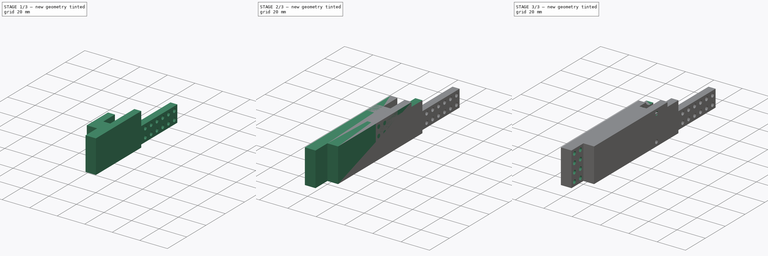
[diagram: build sequence overview — one tinted view per stage of 3, left to right]
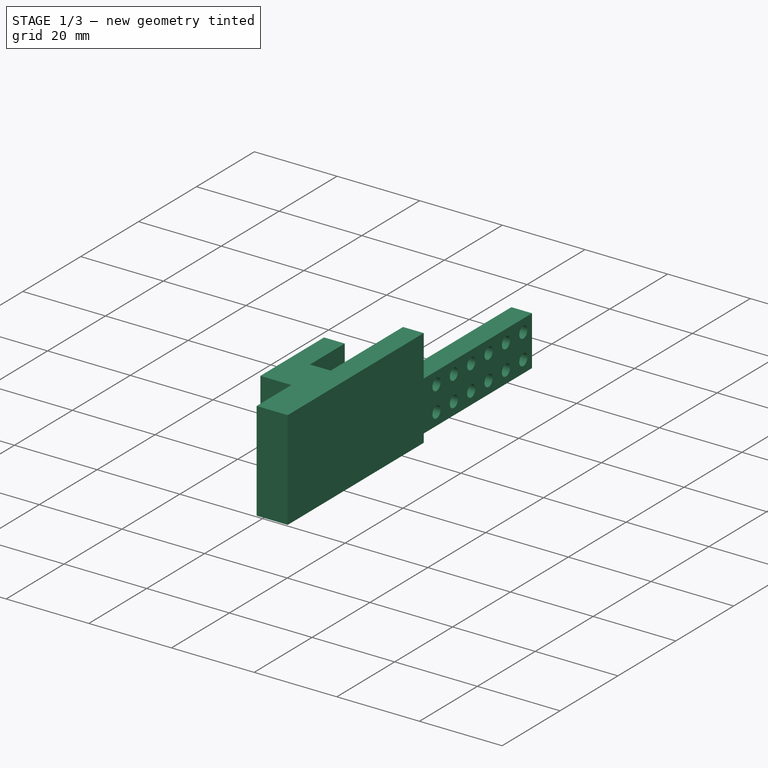
[diagram: stage 1 of 3 — iso view after this stage's code; geometry added in this stage tinted green]
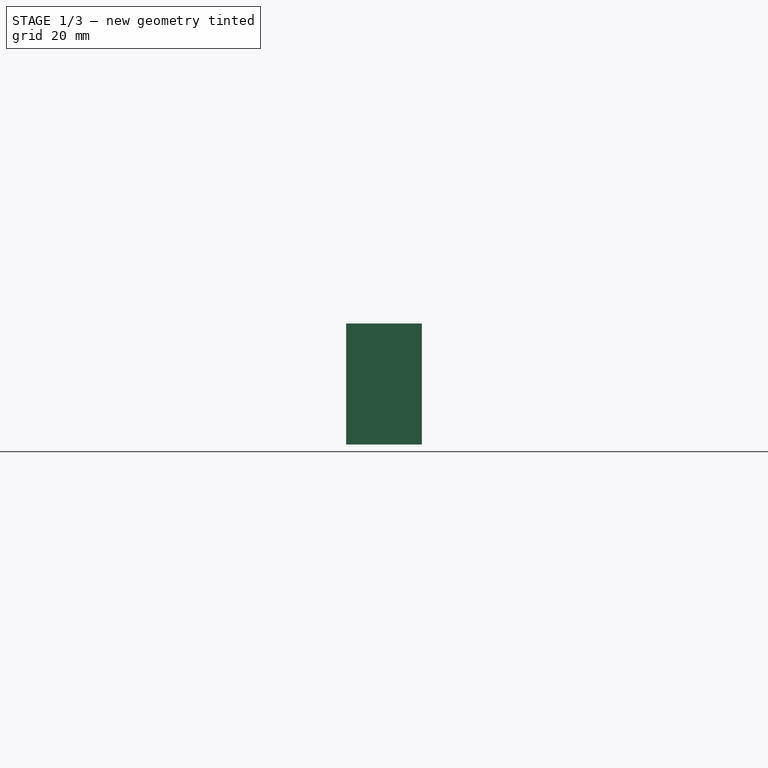
[diagram: stage 1 of 3 — front view after this stage's code; geometry added in this stage tinted green]
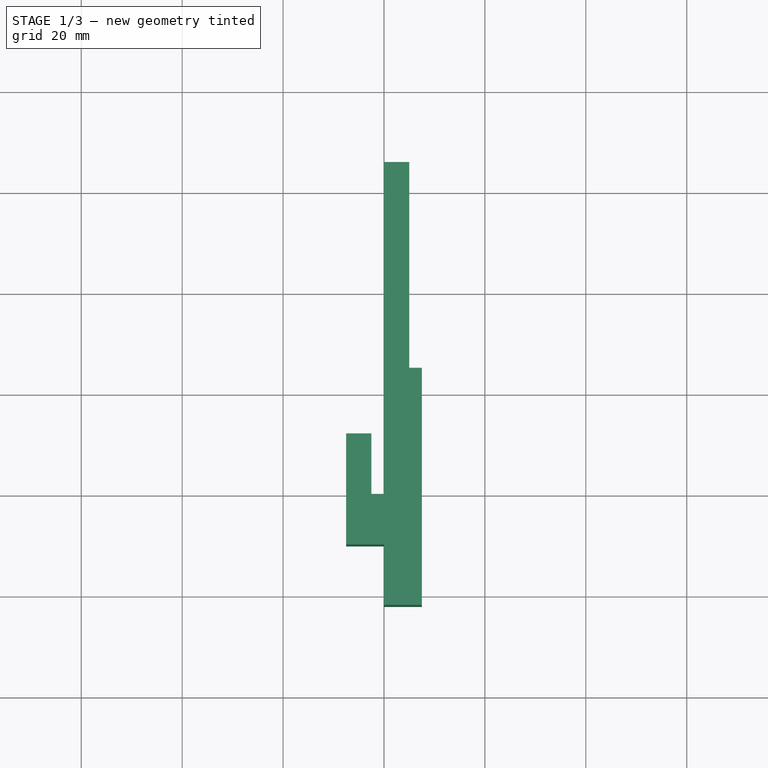
[diagram: stage 1 of 3 — top view after this stage's code; geometry added in this stage tinted green]
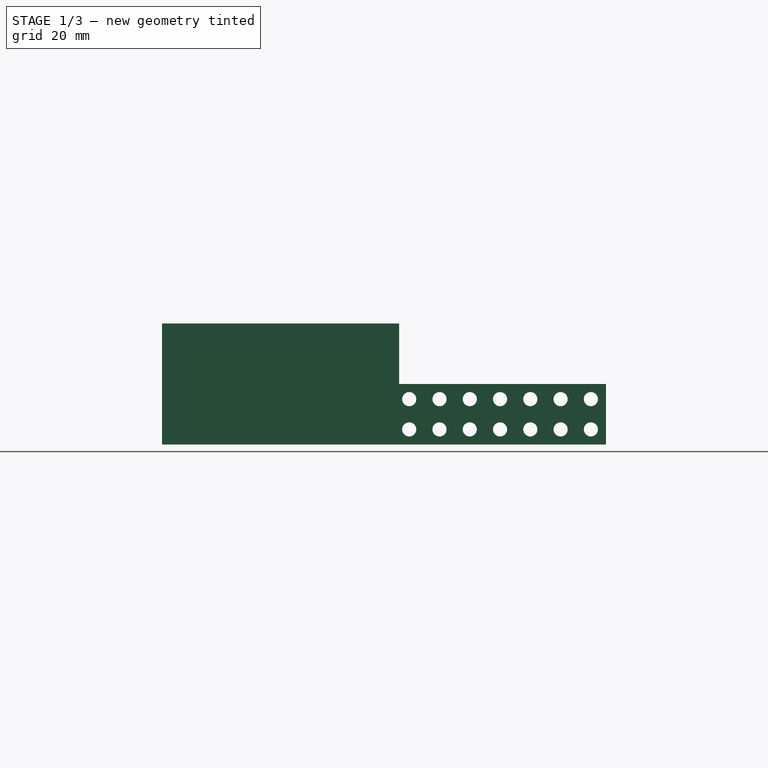
[diagram: stage 1 of 3 — right view after this stage's code; geometry added in this stage tinted green]
FCSTD DOCUMENT  (FreeCAD 0.20R29177 +426 (Git))
Label: FrontRearConn
License: All rights reserved
LicenseURL: http://en.wikipedia.org/wiki/All_rights_reserved
objects: Sketcher::SketchObject×6, PartDesign::Pad×3, PartDesign::Pocket×3, PartDesign::Body×3, Spreadsheet::Sheet×1
note: 21 computed .brp shape members not serialized (recipe doc carries the construction recipe); baked Part::Feature solids carry a one-line shape summary decoded from their .brp

FEATURE [PartDesign::Body] Body  label="BodyFrontConnExtender"
  Group = -> [Sketch,Pad,Sketch001,Pocket,Sketch002,Pocket001]
  Origin = -> Origin
  Tip = -> Pocket001
FEATURE [Sketcher::SketchObject] Sketch003
  FullyConstrained = true
  MapMode = 5
  Support = -> [XY_Plane001]
  expr: Constraints[12] = Spreadsheet.rearThickness
  expr: Constraints[13] = Spreadsheet.rearThickness
  expr: Constraints[26] = Spreadsheet.connPad1
  expr: Constraints[27] = Spreadsheet.rearLenBelow0
  expr: Constraints[2] = Spreadsheet.frontSep
  expr: Constraints[7] = Spreadsheet.rearConnUperClamDepth
  expr: Constraints[8] = Spreadsheet.rearConnUnderClamDepth
  sketch-geometry (10):
    g0: LineSegment StartX=-2.505 StartY=0 StartZ=0 EndX=2.505 EndY=0 EndZ=0
    g1: LineSegment StartX=2.505 StartY=0 StartZ=0 EndX=2.505 EndY=25 EndZ=0
    g2: LineSegment StartX=-2.505 StartY=0 StartZ=0 EndX=-2.505 EndY=12 EndZ=0
    g3: LineSegment StartX=2.505 StartY=25 StartZ=0 EndX=7.505 EndY=25 EndZ=0
    g4: LineSegment StartX=-2.505 StartY=12 StartZ=0 EndX=-7.505 EndY=12 EndZ=0
    g5: LineSegment StartX=7.505 StartY=25 StartZ=0 EndX=7.505 EndY=-22 EndZ=0
    g6: LineSegment StartX=-7.505 StartY=12 StartZ=0 EndX=-7.505 EndY=-10 EndZ=0
    g7: LineSegment StartX=-7.505 StartY=-10 StartZ=0 EndX=0 EndY=-10 EndZ=0
    g8: LineSegment StartX=0 StartY=-10 StartZ=0 EndX=0 EndY=-22 EndZ=0
    g9: LineSegment StartX=0 StartY=-22 StartZ=0 EndX=7.505 EndY=-22 EndZ=0
  constraints (29):
    c: PointOnObject(g0,g-1)
    c: Symmetric(g0,g0,g-1)
    c: DistanceX(g0,g0) = 5.01
    c: Coincident(g1,g0)
    c: Vertical(g1)
    c: Coincident(g2,g0)
    c: Vertical(g2)
    c: DistanceY(g1,g1) = 25
    c: DistanceY(g2,g2) = 12
    c: Coincident(g3,g1)
    c: Horizontal(g3)
    c: Coincident(g4,g2)
    c: DistanceX(g3,g3) = 5
    c: DistanceX(g4,g4) = 5
    c: Coincident(g5,g3)
    c: Vertical(g5)
    c: Coincident(g6,g4)
    c: Vertical(g6)
    c: Coincident(g7,g6)
    c: PointOnObject(g7,g-2)
    c: Horizontal(g7)
    c: Coincident(g8,g7)
    c: Coincident(g9,g8)
    c: Horizontal(g9)
    c: Coincident(g5,g9)
    c: Vertical(g8)
    c: DistanceY(g8,g8) = 12
    c: DistanceY(g7,g-1) = 10
    c: Horizontal(g4)
FEATURE [PartDesign::Pad] Pad001
  Direction = (0,0,1)
  Length = 24
  Length2 = 10
  Profile = -> Sketch003
  ReferenceAxis = -> Sketch003 [N_Axis]
  Type = 0
  expr: Length = Spreadsheet.connPad
FEATURE [PartDesign::Body] Body001  label="Body001RearConnExtender"
  Group = -> [Sketch003,Pad001,Sketch004,Pocket002]
  Origin = -> Origin001
  Tip = -> Pocket002
FEATURE [Sketcher::SketchObject] Sketch005
  FullyConstrained = false
  MapMode = 5
  Placement = pos=(0,0,0) rot=(0.57735,0.57735,0.57735;2.0944rad)
  Support = -> [YZ_Plane002]
  expr: Constraints[10] = Spreadsheet.middleConnLen
  expr: Constraints[12] = Spreadsheet.screwToSide
  expr: Constraints[17] = Spreadsheet.screwToSide
  expr: Constraints[21] = Spreadsheet.screwTightR
  expr: Constraints[23] = Spreadsheet.screwSep
  expr: Constraints[24] = Spreadsheet.screwTightR
  expr: Constraints[26] = Spreadsheet.screwSep
  expr: Constraints[27] = Spreadsheet.screwTightR
  expr: Constraints[29] = Spreadsheet.screwSep
  expr: Constraints[30] = Spreadsheet.screwTightR
  expr: Constraints[32] = Spreadsheet.screwSep
  expr: Constraints[33] = Spreadsheet.screwTightR
  expr: Constraints[35] = Spreadsheet.screwSep
  expr: Constraints[36] = Spreadsheet.screwTightR
  expr: Constraints[38] = Spreadsheet.screwSep
  expr: Constraints[39] = Spreadsheet.screwTightR
  expr: Constraints[41] = Spreadsheet.screwSep
  expr: Constraints[42] = Spreadsheet.screwTightR
  expr: Constraints[44] = Spreadsheet.screwSep
  expr: Constraints[45] = Spreadsheet.screwTightR
  expr: Constraints[47] = Spreadsheet.screwSep
  expr: Constraints[48] = Spreadsheet.screwTightR
  expr: Constraints[50] = Spreadsheet.screwSep
  expr: Constraints[51] = Spreadsheet.screwTightR
  expr: Constraints[53] = Spreadsheet.screwSep
  expr: Constraints[55] = Spreadsheet.screwTightR
  expr: Constraints[57] = Spreadsheet.screwSep
  expr: Constraints[58] = Spreadsheet.screwTightR
  expr: Constraints[60] = Spreadsheet.screwSep
  expr: Constraints[61] = Spreadsheet.screwTightR
  expr: Constraints[63] = Spreadsheet.screwSep
  expr: Constraints[64] = Spreadsheet.screwTightR
  expr: Constraints[66] = Spreadsheet.screwSep
  expr: Constraints[67] = Spreadsheet.screwTightR
  expr: Constraints[69] = Spreadsheet.screwSep
  expr: Constraints[70] = Spreadsheet.screwTightR
  expr: Constraints[72] = Spreadsheet.screwSep
  expr: Constraints[73] = Spreadsheet.screwTightR
  expr: Constraints[75] = Spreadsheet.screwSep
  expr: Constraints[76] = Spreadsheet.screwTightR
  expr: Constraints[78] = Spreadsheet.screwSep
  expr: Constraints[79] = Spreadsheet.screwTightR
  expr: Constraints[81] = Spreadsheet.screwSep
  expr: Constraints[82] = Spreadsheet.screwTightR
  expr: Constraints[84] = Spreadsheet.screwSep
  expr: Constraints[85] = Spreadsheet.screwTightR
  expr: Constraints[9] = Spreadsheet.rearConnUnderClamDepth
  sketch-geometry (30):
    g0: LineSegment StartX=0 StartY=0 StartZ=0 EndX=66 EndY=0 EndZ=0
    g1: LineSegment StartX=66 StartY=0 StartZ=0 EndX=66 EndY=12 EndZ=0
    g2: LineSegment StartX=66 StartY=12 StartZ=0 EndX=0 EndY=12 EndZ=0
    g3: LineSegment StartX=0 StartY=12 StartZ=0 EndX=0 EndY=0 EndZ=0
    g4: LineSegment StartX=3 StartY=3 StartZ=0 EndX=64.0321 EndY=3 EndZ=0
    g5: LineSegment StartX=3 StartY=3 StartZ=0 EndX=3 EndY=9 EndZ=0
    g6: LineSegment StartX=64.0321 StartY=3 StartZ=0 EndX=64.0321 EndY=9 EndZ=0
    g7: LineSegment StartX=3 StartY=9 StartZ=0 EndX=64.0321 EndY=9 EndZ=0
    g8: Circle CenterX=3 CenterY=9 CenterZ=0 NormalX=0 NormalY=0 NormalZ=1 AngleXU=0 Radius=1.4
    g9: Circle CenterX=9 CenterY=9 CenterZ=0 NormalX=0 NormalY=0 NormalZ=1 AngleXU=0 Radius=1.4
    g10: Circle CenterX=15 CenterY=9 CenterZ=0 NormalX=0 NormalY=0 NormalZ=1 AngleXU=0 Radius=1.4
    g11: Circle CenterX=21 CenterY=9 CenterZ=0 NormalX=0 NormalY=0 NormalZ=1 AngleXU=0 Radius=1.4
    g12: Circle CenterX=27 CenterY=9 CenterZ=0 NormalX=0 NormalY=0 NormalZ=1 AngleXU=0 Radius=1.4
    g13: Circle CenterX=33 CenterY=9 CenterZ=0 NormalX=0 NormalY=0 NormalZ=1 AngleXU=0 Radius=1.4
    g14: Circle CenterX=39 CenterY=9 CenterZ=0 NormalX=0 NormalY=0 NormalZ=1 AngleXU=0 Radius=1.4
    g15: Circle CenterX=45 CenterY=9 CenterZ=0 NormalX=0 NormalY=0 NormalZ=1 AngleXU=0 Radius=1.4
    g16: Circle CenterX=51 CenterY=9 CenterZ=0 NormalX=0 NormalY=0 NormalZ=1 AngleXU=0 Radius=1.4
    g17: Circle CenterX=57 CenterY=9 CenterZ=0 NormalX=0 NormalY=0 NormalZ=1 AngleXU=0 Radius=1.4
    g18: Circle CenterX=63 CenterY=9 CenterZ=0 NormalX=0 NormalY=0 NormalZ=1 AngleXU=0 Radius=1.4
    g19: Circle CenterX=3 CenterY=3 CenterZ=0 NormalX=0 NormalY=0 NormalZ=1 AngleXU=0 Radius=1.4
    g20: Circle CenterX=9 CenterY=3 CenterZ=0 NormalX=0 NormalY=0 NormalZ=1 AngleXU=0 Radius=1.4
    g21: Circle CenterX=15 CenterY=3 CenterZ=0 NormalX=0 NormalY=0 NormalZ=1 AngleXU=0 Radius=1.4
    g22: Circle CenterX=21 CenterY=3 CenterZ=0 NormalX=0 NormalY=0 NormalZ=1 AngleXU=0 Radius=1.4
    g23: Circle CenterX=27 CenterY=3 CenterZ=0 NormalX=0 NormalY=0 NormalZ=1 AngleXU=0 Radius=1.4
    g24: Circle CenterX=33 CenterY=3 CenterZ=0 NormalX=0 NormalY=0 NormalZ=1 AngleXU=0 Radius=1.4
    g25: Circle CenterX=39 CenterY=3 CenterZ=0 NormalX=0 NormalY=0 NormalZ=1 AngleXU=0 Radius=1.4
    g26: Circle CenterX=45 CenterY=3 CenterZ=0 NormalX=0 NormalY=0 NormalZ=1 AngleXU=0 Radius=1.4
    g27: Circle CenterX=51 CenterY=3 CenterZ=0 NormalX=0 NormalY=0 NormalZ=1 AngleXU=0 Radius=1.4
    g28: Circle CenterX=57 CenterY=3 CenterZ=0 NormalX=0 NormalY=0 NormalZ=1 AngleXU=0 Radius=1.4
    g29: Circle CenterX=63 CenterY=3 CenterZ=0 NormalX=0 NormalY=0 NormalZ=1 AngleXU=0 Radius=1.4
  constraints (86):
    c: Coincident(g0,g1)
    c: Coincident(g1,g2)
    c: Coincident(g2,g3)
    c: Coincident(g3,g0)
    c: Horizontal(g0)
    c: Horizontal(g2)
    c: Vertical(g1)
    c: Vertical(g3)
    c: Coincident(g0,g-1)
    c: DistanceY(g3,g3) = 12
    c: DistanceX(g2,g2) = 66
    c: Horizontal(g4)
    c: DistanceX(g0,g4) = 3
    c: Coincident(g5,g4)
    c: Vertical(g5)
    c: Coincident(g6,g4)
    c: Vertical(g6)
    c: DistanceY(g0,g4) = 3
    c: Coincident(g7,g6)
    c: Horizontal(g7)
    c: Coincident(g8,g7)
    c: Radius(g8) = 1.4
    c: PointOnObject(g9,g7)
    c: DistanceX(g8,g9) = 6
    c: Radius(g9) = 1.4
    c: PointOnObject(g10,g7)
    c: DistanceX(g9,g10) = 6
    c: Radius(g10) = 1.4
    c: PointOnObject(g11,g7)
    c: DistanceX(g10,g11) = 6
    c: Radius(g11) = 1.4
    c: PointOnObject(g12,g7)
    c: DistanceX(g11,g12) = 6
    c: Radius(g12) = 1.4
    c: PointOnObject(g13,g7)
    c: DistanceX(g12,g13) = 6
    c: Radius(g13) = 1.4
    c: PointOnObject(g14,g7)
    c: DistanceX(g13,g14) = 6
    c: Radius(g14) = 1.4
    c: PointOnObject(g15,g7)
    c: DistanceX(g14,g15) = 6
    c: Radius(g15) = 1.4
    c: PointOnObject(g16,g7)
    c: DistanceX(g15,g16) = 6
    c: Radius(g16) = 1.4
    c: PointOnObject(g17,g7)
    c: DistanceX(g16,g17) = 6
    c: Radius(g17) = 1.4
    c: PointOnObject(g18,g7)
    c: DistanceX(g17,g18) = 6
    c: Radius(g18) = 1.4
    c: Coincident(g8,g5)
    c: DistanceY(g5,g5) = 6
    c: Coincident(g19,g4)
    c: Radius(g19) = 1.4
    c: PointOnObject(g20,g4)
    c: DistanceX(g19,g20) = 6
    c: Radius(g20) = 1.4
    c: PointOnObject(g21,g4)
    c: DistanceX(g20,g21) = 6
    c: Radius(g21) = 1.4
    c: PointOnObject(g22,g4)
    c: DistanceX(g21,g22) = 6
    c: Radius(g22) = 1.4
    c: PointOnObject(g23,g4)
    c: DistanceX(g22,g23) = 6
    c: Radius(g23) = 1.4
    c: PointOnObject(g24,g4)
    c: DistanceX(g23,g24) = 6
    c: Radius(g24) = 1.4
    c: PointOnObject(g25,g4)
    c: DistanceX(g24,g25) = 6
    c: Radius(g25) = 1.4
    c: PointOnObject(g26,g4)
    c: DistanceX(g25,g26) = 6
    c: Radius(g26) = 1.4
    c: PointOnObject(g27,g4)
    c: DistanceX(g26,g27) = 6
    c: Radius(g27) = 1.4
    c: PointOnObject(g28,g4)
    c: DistanceX(g27,g28) = 6
    c: Radius(g28) = 1.4
    c: PointOnObject(g29,g4)
    c: DistanceX(g28,g29) = 6
    c: Radius(g29) = 1.4
FEATURE [PartDesign::Pad] Pad002
  Direction = (1,-2e-16,3e-16)
  Length = 5
  Length2 = 10
  Placement = pos=(0,0,0) rot=(0.57735,0.57735,0.57735;2.0944rad)
  Profile = -> Sketch005
  ReferenceAxis = -> Sketch005 [N_Axis]
  Type = 0
  expr: Length = Spreadsheet.halfBeamWidth
FEATURE [PartDesign::Body] Body002  label="Body002MiddleConn"
  Group = -> [Sketch005,Pad002]
  Origin = -> Origin002
  Tip = -> Pad002
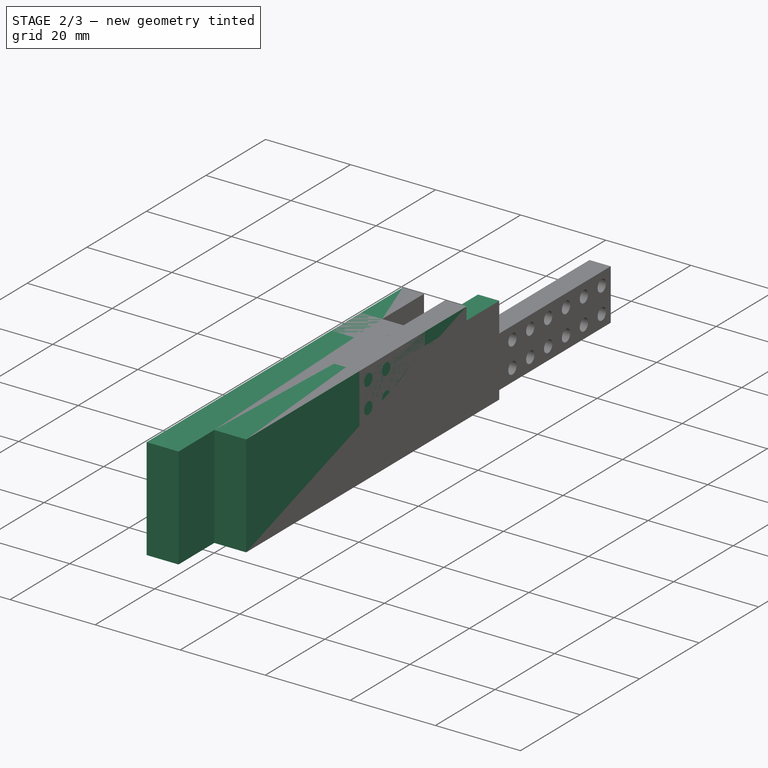
[diagram: stage 2 of 3 — iso view after this stage's code; geometry added in this stage tinted green]
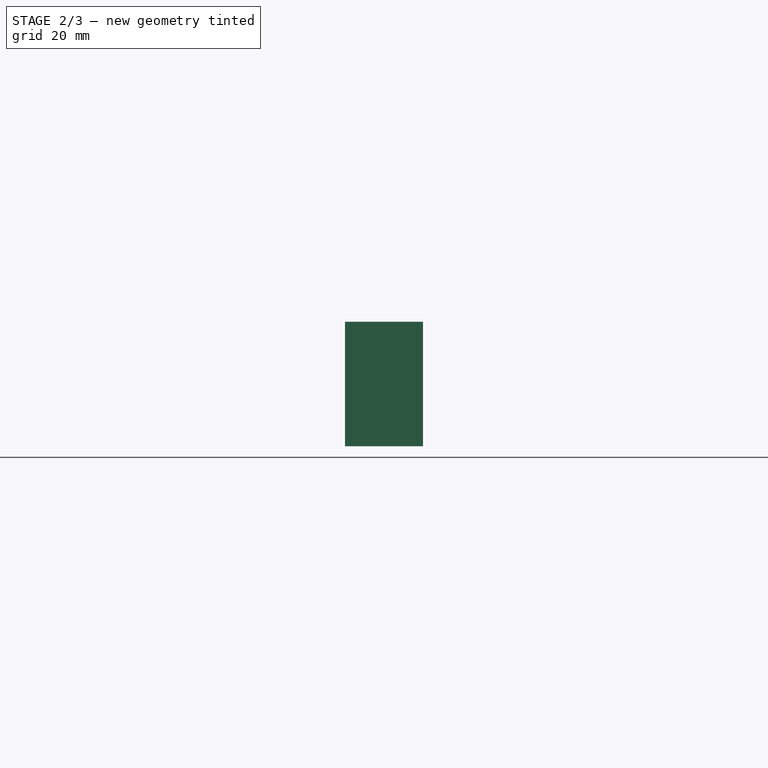
[diagram: stage 2 of 3 — front view after this stage's code; geometry added in this stage tinted green]
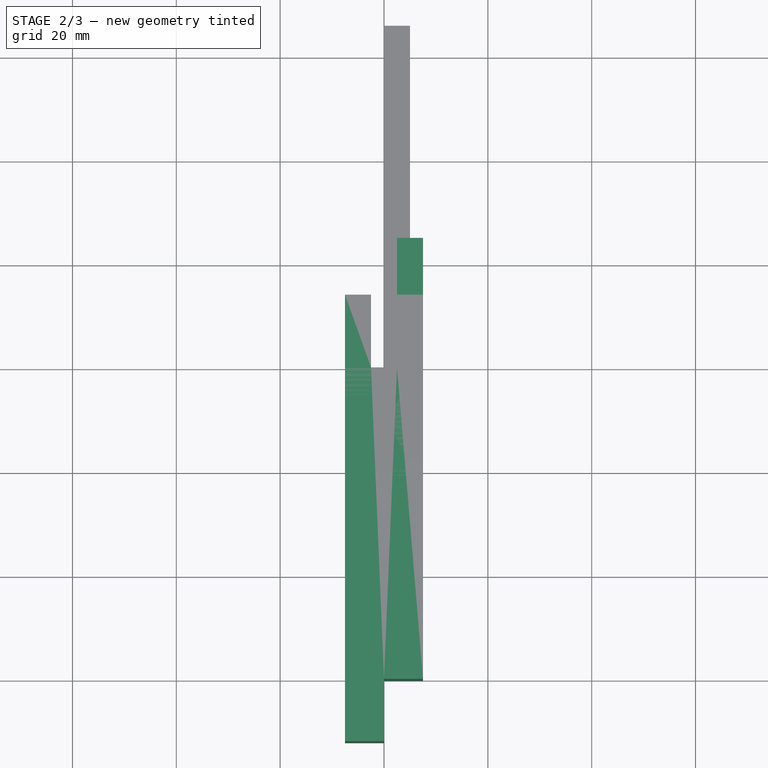
[diagram: stage 2 of 3 — top view after this stage's code; geometry added in this stage tinted green]
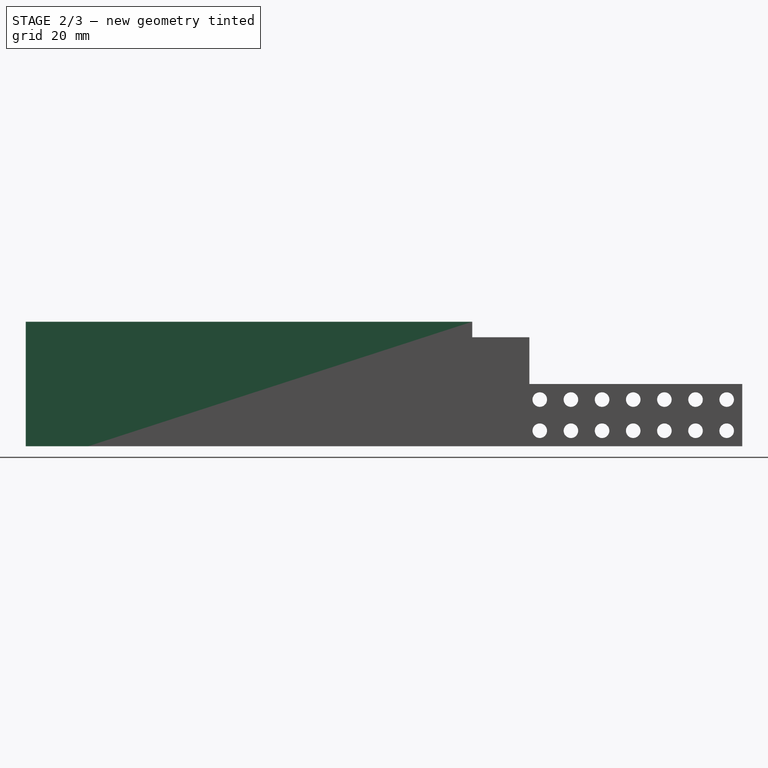
[diagram: stage 2 of 3 — right view after this stage's code; geometry added in this stage tinted green]
FEATURE [Spreadsheet::Sheet] Spreadsheet
  cells = A2=screwTightR; B2(screwTightR)=1.4; A3=screwSep; B3(screwSep)=6; A4=screwToSide; B4(screwToSide)==B3 / 2; A5=connWidth; B5(connWidth)=5; C5=need Change; A6=connPad; B6(connPad)==B3 * 3 + B4 * 2; A7=frontSep; B7(frontSep)==5 + B11; A8=frontClamDepth; B8(frontClamDepth)=14; A9=frontConnLength; B9(frontConnLength)==B8 + B5 + 50; C9=need Change; A10=deg45; B10(deg45)=45; A11=fitGap; B11(fitGap)=0.01; A12=connPad1; B12(connPad1)==B4 * 2 + B3; A13=connFromFrontLenAfter0; B13(connFromFrontLenAfter0)==B9 + B5 + B12 - B8; C13=frontConnLength + connWidth + connPad1 - frontClamDepth; A14=toCenterHousingCorner; B14(toCenterHousingCorner)=7.9; C14=mneasured from centerHousing in frontalConnectors; A15=centerHousingCornerR; B15(centerHousingCornerR)=4.9; C15=4.9, but use 5; A16=centerHousingCornerROuter; B16(centerHousingCornerROuter)==B15 + 0.01; A20=rearConnUperClamDepth; B20(rearConnUperClamDepth)=25; A21=rearConnUnderClamDepth; B21(rearConnUnderClamDepth)==B4 * 2 + B3; A22=rearThickness; B22(rearThickness)=5; C22=need change; A23=rearLenBelow0; B23(rearLenBelow0)=10; C23=needChange; A24=rearOtherUnitThickness; B24(rearOtherUnitThickness)=22; A26=middleConnNumScrews; B26(middleConnNumScrews)=10; A27=halfBeamWidth; B27(halfBeamWidth)==B7 - 0.01; A28=middleConnLen; B28(middleConnLen)==B26 * B3 + B4 * 2
FEATURE [Sketcher::SketchObject] Sketch
  FullyConstrained = true
  MapMode = 5
  Support = -> [XY_Plane]
  expr: Constraints[10] = Spreadsheet.connWidth
  expr: Constraints[13] = Spreadsheet.frontClamDepth
  expr: Constraints[16] = Spreadsheet.frontConnLength + Spreadsheet.connWidth
  expr: Constraints[20] = Spreadsheet.connPad1
  expr: Constraints[9] = Spreadsheet.frontSep
  sketch-geometry (10):
    g0: LineSegment StartX=-2.505 StartY=0 StartZ=0 EndX=-2.505 EndY=14 EndZ=0
    g1: LineSegment StartX=-2.505 StartY=0 StartZ=0 EndX=2.505 EndY=0 EndZ=0
    g2: LineSegment StartX=2.505 StartY=0 StartZ=0 EndX=2.505 EndY=14 EndZ=0
    g3: LineSegment StartX=-2.505 StartY=14 StartZ=0 EndX=-7.505 EndY=14 EndZ=0
    g4: LineSegment StartX=2.505 StartY=14 StartZ=0 EndX=7.505 EndY=14 EndZ=0
    g5: LineSegment StartX=-7.505 StartY=14 StartZ=0 EndX=-7.505 EndY=-72 EndZ=0
    g6: LineSegment StartX=7.505 StartY=14 StartZ=0 EndX=7.505 EndY=-60 EndZ=0
    g7: LineSegment StartX=0 StartY=-60 StartZ=0 EndX=0 EndY=-72 EndZ=0
    g8: LineSegment StartX=-7.505 StartY=-72 StartZ=0 EndX=0 EndY=-72 EndZ=0
    g9: LineSegment StartX=0 StartY=-60 StartZ=0 EndX=7.505 EndY=-60 EndZ=0
  constraints (27):
    c: Vertical(g0)
    c: Coincident(g1,g0)
    c: Coincident(g2,g1)
    c: Symmetric(g1,g0,g-2)
    c: Symmetric(g2,g0,g-2)
    c: Coincident(g3,g0)
    c: Horizontal(g3)
    c: Coincident(g4,g2)
    c: Symmetric(g4,g3,g-2)
    c: DistanceX(g1,g1) = 5.01
    c: DistanceX(g4,g4) = 5
    c: Coincident(g5,g3)
    c: Vertical(g5)
    c: DistanceY(g2,g2) = 14
    c: Coincident(g6,g4)
    c: Vertical(g6)
    c: DistanceY(g6,g6) = 74
    c: Vertical(g7)
    c: Coincident(g8,g7)
    c: Horizontal(g8)
    c: DistanceY(g7,g7) = 12
    c: PointOnObject(g0,g-1)
    c: Coincident(g9,g7)
    c: Coincident(g9,g6)
    c: Horizontal(g9)
    c: Coincident(g5,g8)
    c: PointOnObject(g7,g-2)
FEATURE [PartDesign::Pad] Pad
  Direction = (0,0,1)
  Length = 24
  Length2 = 10
  Profile = -> Sketch
  ReferenceAxis = -> Sketch [N_Axis]
  Type = 0
  expr: Length = Spreadsheet.connPad
FEATURE [Sketcher::SketchObject] Sketch004
  FullyConstrained = true
  MapMode = 5
  Placement = pos=(0,0,0) rot=(0.57735,0.57735,0.57735;2.0944rad)
  Support = -> [YZ_Plane001]
  expr: Constraints[10] = Spreadsheet.screwSep
  expr: Constraints[16] = Spreadsheet.rearLenBelow0 + Spreadsheet.screwToSide
  expr: Constraints[17] = Spreadsheet.screwSep
  expr: Constraints[1] = Spreadsheet.screwToSide
  expr: Constraints[2] = Spreadsheet.connPad - Spreadsheet.screwToSide
  expr: Constraints[31] = Spreadsheet.rearOtherUnitThickness - Spreadsheet.screwToSide
  expr: Constraints[40] = Spreadsheet.screwSep
  expr: Constraints[61] = Spreadsheet.screwTightR
  expr: Constraints[74] = Spreadsheet.screwSep
  expr: Constraints[75] = Spreadsheet.rearConnUperClamDepth
  expr: Constraints[9] = Spreadsheet.screwToSide
  sketch-geometry (29):
    g0: LineSegment StartX=3 StartY=21 StartZ=0 EndX=3 EndY=3 EndZ=0
    g1: LineSegment StartX=3 StartY=21 StartZ=0 EndX=9 EndY=21 EndZ=0
    g2: LineSegment StartX=9 StartY=21 StartZ=0 EndX=9 EndY=3 EndZ=0
    g3: LineSegment StartX=9 StartY=3 StartZ=0 EndX=3 EndY=3 EndZ=0
    g4: Circle CenterX=3 CenterY=3 CenterZ=0 NormalX=0 NormalY=0 NormalZ=1 AngleXU=0 Radius=1.4
    g5: Circle CenterX=9 CenterY=3 CenterZ=0 NormalX=0 NormalY=0 NormalZ=1 AngleXU=0 Radius=1.4
    g6: LineSegment StartX=3 StartY=21 StartZ=0 EndX=-13 EndY=21 EndZ=0
    g7: LineSegment StartX=-13 StartY=21 StartZ=0 EndX=-13 EndY=15 EndZ=0
    g8: Circle CenterX=-13 CenterY=21 CenterZ=0 NormalX=0 NormalY=0 NormalZ=1 AngleXU=0 Radius=1.4
    g9: Circle CenterX=-13 CenterY=15 CenterZ=0 NormalX=0 NormalY=0 NormalZ=1 AngleXU=0 Radius=1.4
    g10: LineSegment StartX=-13 StartY=15 StartZ=0 EndX=-13 EndY=9 EndZ=0
    g11: LineSegment StartX=-13 StartY=9 StartZ=0 EndX=-13 EndY=3 EndZ=0
    g12: Circle CenterX=-13 CenterY=9 CenterZ=0 NormalX=0 NormalY=0 NormalZ=1 AngleXU=0 Radius=1.4
    g13: Circle CenterX=-13 CenterY=3 CenterZ=0 NormalX=0 NormalY=0 NormalZ=1 AngleXU=0 Radius=1.4
    g14: LineSegment StartX=3 StartY=19 StartZ=0 EndX=9 EndY=19 EndZ=0
    g15: Circle CenterX=3 CenterY=19 CenterZ=0 NormalX=0 NormalY=0 NormalZ=1 AngleXU=0 Radius=1.4
    g16: Circle CenterX=9 CenterY=19 CenterZ=0 NormalX=0 NormalY=0 NormalZ=1 AngleXU=0 Radius=1.4
    g17: LineSegment StartX=-13 StartY=21 StartZ=0 EndX=-19 EndY=21 EndZ=0
    g18: LineSegment StartX=-19 StartY=21 StartZ=0 EndX=-19 EndY=15 EndZ=0
    g19: LineSegment StartX=-19 StartY=15 StartZ=0 EndX=-19 EndY=9 EndZ=0
    g20: LineSegment StartX=-19 StartY=9 StartZ=0 EndX=-19 EndY=3 EndZ=0
    g21: Circle CenterX=-19 CenterY=21 CenterZ=0 NormalX=0 NormalY=0 NormalZ=1 AngleXU=0 Radius=1.4
    g22: Circle CenterX=-19 CenterY=15 CenterZ=0 NormalX=0 NormalY=0 NormalZ=1 AngleXU=0 Radius=1.4
    g23: Circle CenterX=-19 CenterY=9 CenterZ=0 NormalX=0 NormalY=0 NormalZ=1 AngleXU=0 Radius=1.4
    g24: Circle CenterX=-19 CenterY=3 CenterZ=0 NormalX=0 NormalY=0 NormalZ=1 AngleXU=0 Radius=1.4
    g25: LineSegment StartX=0 StartY=21 StartZ=0 EndX=25 EndY=21 EndZ=0
    g26: LineSegment StartX=25 StartY=21 StartZ=0 EndX=25 EndY=27 EndZ=0
    g27: LineSegment StartX=25 StartY=27 StartZ=0 EndX=0 EndY=27 EndZ=0
    g28: LineSegment StartX=0 StartY=27 StartZ=0 EndX=0 EndY=21 EndZ=0
  constraints (73):
    c: Vertical(g0)
    c: DistanceY(g-1,g0) = 3
    c: DistanceY(g-1,g0) = 21
    c: Coincident(g1,g0)
    c: Horizontal(g1)
    c: Coincident(g2,g1)
    c: Coincident(g3,g2)
    c: Coincident(g3,g0)
    c: Horizontal(g3)
    c: DistanceX(g-1,g0) = 3
    c: DistanceX(g1,g1) = 6
    c: Coincident(g4,g0)
    c: Coincident(g5,g2)
    c: Horizontal(g6)
    c: Coincident(g7,g6)
    c: Vertical(g7)
    c: DistanceX(g6,g-1) = 13
    c: DistanceY(g7,g7) = 6
    c: Coincident(g8,g6)
    c: Coincident(g9,g7)
    c: Coincident(g10,g9)
    c: Vertical(g10)
    c: Coincident(g11,g10)
    c: Vertical(g11)
    c: Equal(g7,g10)
    c: Equal(g10,g11)
    c: Coincident(g12,g10)
    c: Coincident(g13,g11)
    c: PointOnObject(g14,g0)
    c: PointOnObject(g14,g2)
    c: Horizontal(g14)
    c: DistanceY(g-1,g14) = 19
    c: Coincident(g15,g14)
    c: Coincident(g16,g14)
    c: Coincident(g17,g8)
    c: Horizontal(g17)
    c: Coincident(g18,g17)
    c: Vertical(g18)
    c: Coincident(g19,g18)
    c: Coincident(g20,g19)
    c: DistanceX(g17,g17) = 6
    c: Vertical(g19)
    c: Vertical(g20)
    c: Equal(g20,g19)
    c: Equal(g19,g18)
    c: Coincident(g21,g17)
    c: Coincident(g22,g18)
    c: Coincident(g23,g19)
    c: Coincident(g24,g20)
    c: Coincident(g6,g0)
    c: Equal(g9,g8)
    c: Equal(g9, g21-g24) x4
    c: Equal(g9,g13)
    c: Equal(g9,g12)
    c: Equal(g9,g15)
    c: Equal(g9,g16)
    c: Equal(g9,g4)
    c: Equal(g9,g5)
    c: Radius(g9) = 1.4
    c: Equal(g18,g17)
    c: Vertical(g2)
    c: Coincident(g25,g26)
    c: Coincident(g26,g27)
    c: Coincident(g27,g28)
    c: Coincident(g28,g25)
    c: Horizontal(g25)
    c: Horizontal(g27)
    c: Vertical(g26)
    c: Vertical(g28)
    c: PointOnObject(g25,g6)
    c: PointOnObject(g25,g-2)
    c: DistanceY(g26,g26) = 6
    c: DistanceX(g25,g25) = 25
FEATURE [PartDesign::Pocket] Pocket002
  BaseFeature = -> Pad001
  Direction = (-1,2e-16,-3e-16)
  Length = 5
  Length2 = 5
  Midplane = true
  Profile = -> Sketch004
  ReferenceAxis = -> Sketch004 [N_Axis]
  Type = 1
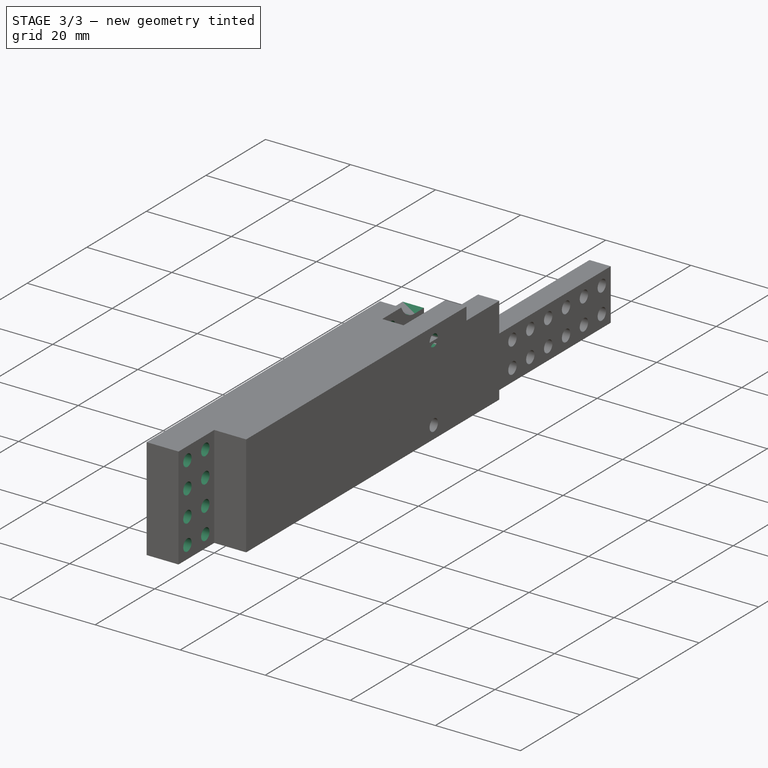
[diagram: stage 3 of 3 — iso view after this stage's code; geometry added in this stage tinted green]
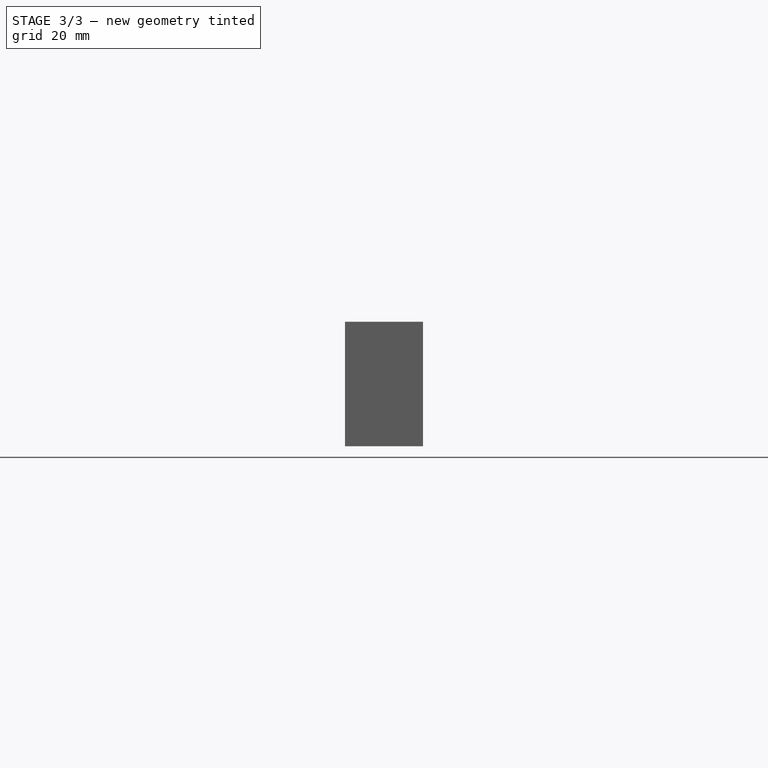
[diagram: stage 3 of 3 — front view after this stage's code; geometry added in this stage tinted green]
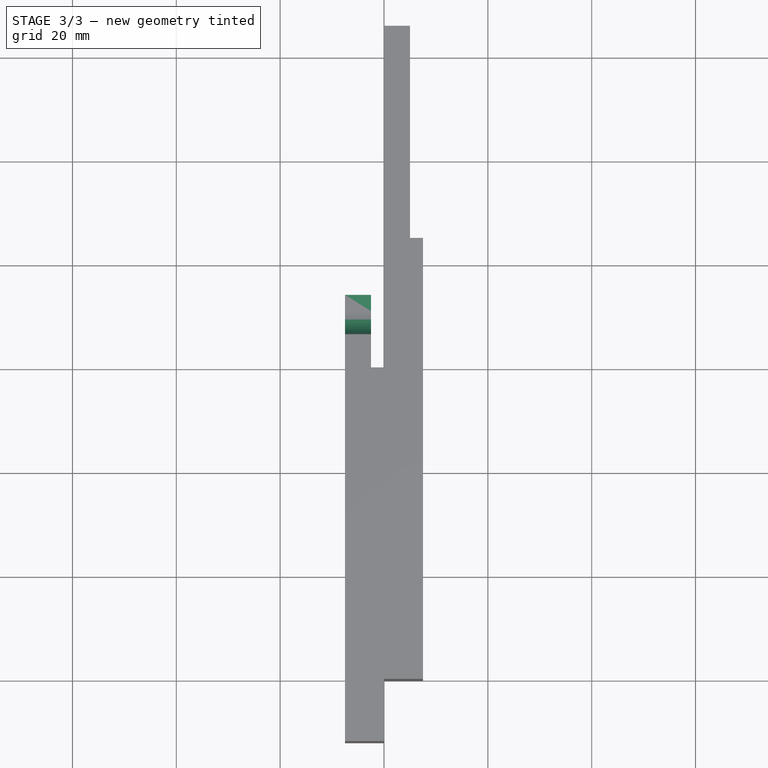
[diagram: stage 3 of 3 — top view after this stage's code; geometry added in this stage tinted green]
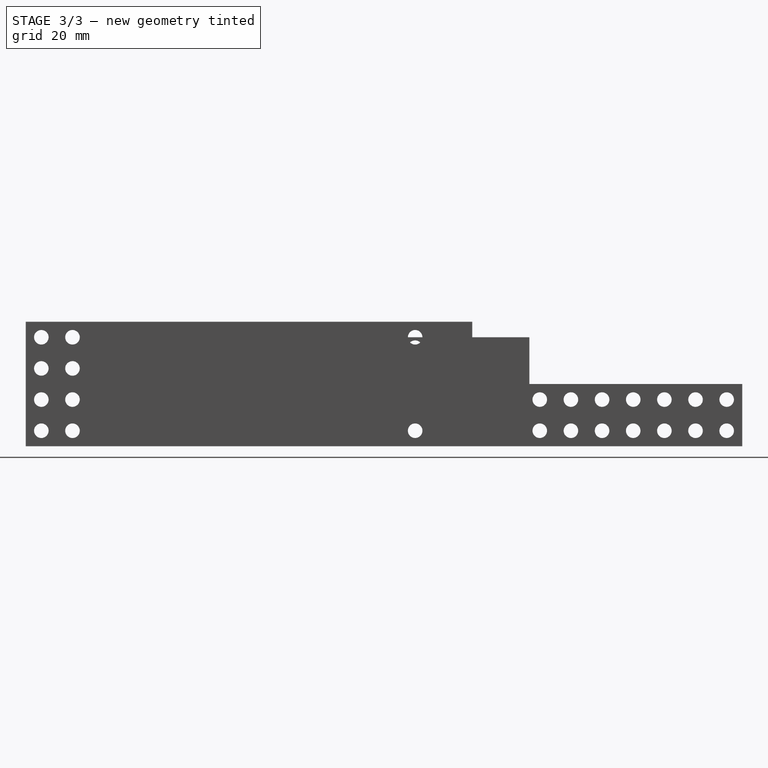
[diagram: stage 3 of 3 — right view after this stage's code; geometry added in this stage tinted green]
FEATURE [Sketcher::SketchObject] Sketch001  label="Sketch001ScrewHoles"
  ExternalGeometry = -> [Pad]
  FullyConstrained = false
  MapMode = 5
  Placement = pos=(0,0,0) rot=(0.57735,0.57735,0.57735;2.0944rad)
  Support = -> [YZ_Plane]
  expr: Constraints[18] = Spreadsheet.screwTightR
  expr: Constraints[26] = Spreadsheet.screwSep
  expr: Constraints[30] = Spreadsheet.screwTightR
  expr: Constraints[38] = Spreadsheet.screwSep
  expr: Constraints[42] = Spreadsheet.screwTightR
  expr: Constraints[43] = Spreadsheet.connFromFrontLenAfter0 - Spreadsheet.screwToSide
  expr: Constraints[47] = Spreadsheet.screwSep
  expr: Constraints[58] = Spreadsheet.screwTightR
  expr: Constraints[5] = Spreadsheet.screwToSide
  expr: Constraints[6] = Spreadsheet.screwToSide
  expr: Constraints[7] = Spreadsheet.screwSep
  sketch-geometry (25):
    g0: LineSegment StartX=-69 StartY=9 StartZ=0 EndX=3 EndY=9 EndZ=0
    g1: LineSegment StartX=-69 StartY=3 StartZ=0 EndX=3 EndY=3 EndZ=0
    g2: LineSegment StartX=3 StartY=9 StartZ=0 EndX=3 EndY=3 EndZ=0
    g3: Circle CenterX=3 CenterY=9 CenterZ=0 NormalX=0 NormalY=0 NormalZ=1 AngleXU=0 Radius=1.4
    g4: Circle CenterX=3 CenterY=3 CenterZ=0 NormalX=0 NormalY=0 NormalZ=1 AngleXU=0 Radius=1.4
    g5: LineSegment StartX=-69 StartY=9 StartZ=0 EndX=-69 EndY=3 EndZ=0
    g6: Circle CenterX=-69 CenterY=3 CenterZ=0 NormalX=0 NormalY=0 NormalZ=1 AngleXU=0 Radius=1.4
    g7: Circle CenterX=-69 CenterY=9 CenterZ=0 NormalX=0 NormalY=0 NormalZ=1 AngleXU=0 Radius=1.4
    g8: LineSegment StartX=-69 StartY=9 StartZ=0 EndX=-69 EndY=15 EndZ=0
    g9: LineSegment StartX=3 StartY=9 StartZ=0 EndX=3 EndY=15 EndZ=0
    g10: LineSegment StartX=-69 StartY=15 StartZ=0 EndX=3 EndY=15 EndZ=0
    g11: Circle CenterX=3 CenterY=15 CenterZ=0 NormalX=0 NormalY=0 NormalZ=1 AngleXU=0 Radius=1.4
    g12: Circle CenterX=-69 CenterY=15 CenterZ=0 NormalX=0 NormalY=0 NormalZ=1 AngleXU=0 Radius=1.4
    g13: LineSegment StartX=-69 StartY=15 StartZ=0 EndX=-69 EndY=21 EndZ=0
    g14: LineSegment StartX=3 StartY=15 StartZ=0 EndX=3 EndY=21 EndZ=0
    g15: LineSegment StartX=-69 StartY=21 StartZ=0 EndX=3 EndY=21 EndZ=0
    g16: Circle CenterX=-69 CenterY=21 CenterZ=0 NormalX=0 NormalY=0 NormalZ=1 AngleXU=0 Radius=1.4
    g17: Circle CenterX=3 CenterY=21 CenterZ=0 NormalX=0 NormalY=0 NormalZ=1 AngleXU=0 Radius=1.4
    g18: LineSegment StartX=-63 StartY=21 StartZ=0 EndX=-63 EndY=3 EndZ=0
    g19: Circle CenterX=-63 CenterY=21 CenterZ=0 NormalX=0 NormalY=0 NormalZ=1 AngleXU=0 Radius=1.4
    g20: Circle CenterX=-63 CenterY=15 CenterZ=0 NormalX=0 NormalY=0 NormalZ=1 AngleXU=0 Radius=1.4
    g21: Circle CenterX=-63 CenterY=9 CenterZ=0 NormalX=0 NormalY=0 NormalZ=1 AngleXU=0 Radius=1.4
    g22: Circle CenterX=-63 CenterY=3 CenterZ=0 NormalX=0 NormalY=0 NormalZ=1 AngleXU=0 Radius=1.4
    g23: LineSegment StartX=3 StartY=21 StartZ=0 EndX=7.3228 EndY=21 EndZ=0
    g24: LineSegment StartX=3 StartY=3 StartZ=0 EndX=5.68255 EndY=3 EndZ=0
  constraints (63):
    c: Horizontal(g0)
    c: Horizontal(g1)
    c: Coincident(g2,g0)
    c: Coincident(g2,g1)
    c: Vertical(g2)
    c: DistanceX(g-1,g1) = 3
    c: DistanceY(g-1,g1) = 3
    c: DistanceY(g2,g2) = 6
    c: Coincident(g3,g0)
    c: Coincident(g4,g1)
    c: Coincident(g5,g0)
    c: Coincident(g5,g1)
    c: Vertical(g5)
    c: Coincident(g6,g1)
    c: Coincident(g7,g0)
    c: Equal(g3,g7)
    c: Equal(g3,g6)
    c: Equal(g3,g4)
    c: Radius(g3) = 1.4
    c: Coincident(g8,g7)
    c: Vertical(g8)
    c: Coincident(g9,g3)
    c: Vertical(g9)
    c: Coincident(g10,g8)
    c: Coincident(g10,g9)
    c: Horizontal(g10)
    c: DistanceY(g9,g9) = 6
    c: Coincident(g11,g9)
    c: Coincident(g12,g8)
    c: Equal(g11,g12)
    c: Radius(g11) = 1.4
    c: Coincident(g13,g12)
    c: Vertical(g13)
    c: Coincident(g14,g11)
    c: Vertical(g14)
    c: Coincident(g15,g13)
    c: Coincident(g15,g14)
    c: Horizontal(g15)
    c: DistanceY(g14,g14) = 6
    c: Coincident(g16,g13)
    c: Coincident(g17,g14)
    c: Equal(g16,g17)
    c: Radius(g16) = 1.4
    c: DistanceX(g6,g-1) = 69
    c: PointOnObject(g18,g15)
    c: PointOnObject(g18,g1)
    c: Vertical(g18)
    c: DistanceX(g16,g18) = 6
    c: Coincident(g19,g18)
    c: PointOnObject(g20,g18)
    c: PointOnObject(g21,g0)
    c: PointOnObject(g22,g1)
    c: PointOnObject(g20,g10)
    c: PointOnObject(g21,g18)
    c: PointOnObject(g22,g18)
    c: Equal(g19,g20)
    c: Equal(g19,g21)
    c: Equal(g19,g22)
    c: Radius(g19) = 1.4
    c: Horizontal(g23)
    c: Coincident(g23,g17)
    c: Coincident(g24,g4)
    c: Horizontal(g24)
FEATURE [PartDesign::Pocket] Pocket
  BaseFeature = -> Pad
  Direction = (-1,2e-16,-3e-16)
  Length = 5
  Length2 = 5
  Midplane = true
  Profile = -> Sketch001
  ReferenceAxis = -> Sketch001 [N_Axis]
  Type = 1
FEATURE [Sketcher::SketchObject] Sketch002  label="Sketch002CenterCorners"
  FullyConstrained = false
  MapMode = 5
  Placement = pos=(0,0,0) rot=(0.57735,0.57735,0.57735;2.0944rad)
  Support = -> [YZ_Plane]
  expr: Constraints[14] = Spreadsheet.centerHousingCornerR - Spreadsheet.screwToSide
  expr: Constraints[15] = Spreadsheet.screwSep * 3 + Spreadsheet.screwToSide + Spreadsheet.centerHousingCornerR
  expr: Constraints[1] = Spreadsheet.toCenterHousingCorner + Spreadsheet.screwToSide
  expr: Constraints[5] = Spreadsheet.centerHousingCornerR
  sketch-geometry (11):
    g0: LineSegment StartX=10.9 StartY=25.9 StartZ=0 EndX=10.9 EndY=-1.9 EndZ=0
    g1: ArcOfCircle CenterX=10.9 CenterY=-1.9 CenterZ=0 NormalX=0 NormalY=0 NormalZ=1 AngleXU=0 Radius=4.9 StartAngle=1.5708 EndAngle=3.14159
    g2: ArcOfCircle CenterX=10.9 CenterY=25.9 CenterZ=0 NormalX=0 NormalY=0 NormalZ=1 AngleXU=0 Radius=4.9 StartAngle=3.14159 EndAngle=4.71239
    g3: LineSegment StartX=30.665 StartY=34.464 StartZ=0 EndX=6 EndY=34.464 EndZ=0
    g4: LineSegment StartX=6 StartY=34.464 StartZ=0 EndX=6 EndY=25.9 EndZ=0
    g5: LineSegment StartX=30.665 StartY=-10.464 StartZ=0 EndX=6 EndY=-10.464 EndZ=0
    g6: LineSegment StartX=6 StartY=-10.464 StartZ=0 EndX=6 EndY=-1.9 EndZ=0
    g7: LineSegment StartX=25.6214 StartY=21 StartZ=0 EndX=10.9 EndY=21 EndZ=0
    g8: LineSegment StartX=25.6214 StartY=3 StartZ=0 EndX=10.9 EndY=3 EndZ=0
    g9: LineSegment StartX=25.6214 StartY=21 StartZ=0 EndX=25.6214 EndY=3 EndZ=0
    g10: LineSegment StartX=30.665 StartY=34.464 StartZ=0 EndX=30.665 EndY=-10.464 EndZ=0
  constraints (28):
    c: Vertical(g0)
    c: DistanceX(g-1,g0) = 10.9
    c: Coincident(g1,g0)
    c: Coincident(g2,g0)
    c: Equal(g2,g1)
    c: Radius(g2) = 4.9
    c: Horizontal(g3)
    c: Coincident(g4,g3)
    c: Horizontal(g5)
    c: Coincident(g6,g5)
    c: Vertical(g6)
    c: Vertical(g4)
    c: Tangent(g2,g4) = -1.5708
    c: Tangent(g1,g6) = 1.5708
    c: DistanceY(g1,g-1) = 1.9
    c: DistanceY(g-1,g2) = 25.9
    c: Horizontal(g7)
    c: Tangent(g8,g1) = -1.5708
    c: Horizontal(g8)
    c: PointOnObject(g1,g0)
    c: Tangent(g2,g7) = 1.5708
    c: Coincident(g9,g7)
    c: Coincident(g9,g8)
    c: Vertical(g9)
    c: Coincident(g10,g5)
    c: Vertical(g10)
    c: Coincident(g10,g3)
    c: Equal(g4,g6)
FEATURE [PartDesign::Pocket] Pocket001
  BaseFeature = -> Pocket
  Direction = (-1,2e-16,-3e-16)
  Length = 5
  Length2 = 5
  Profile = -> Sketch002
  ReferenceAxis = -> Sketch002 [N_Axis]
  Type = 1
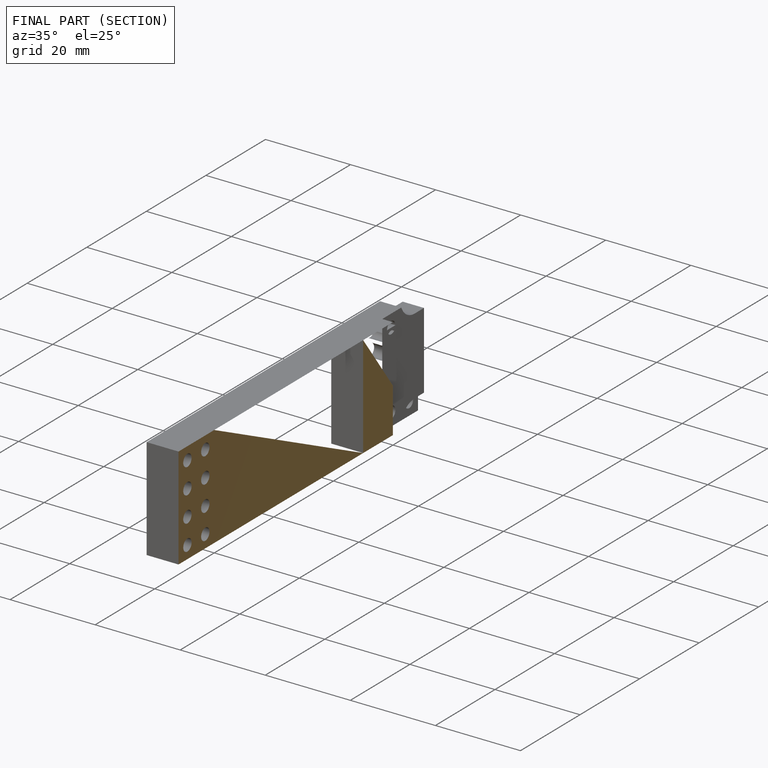
[diagram: finished part — half-section view (interior)]
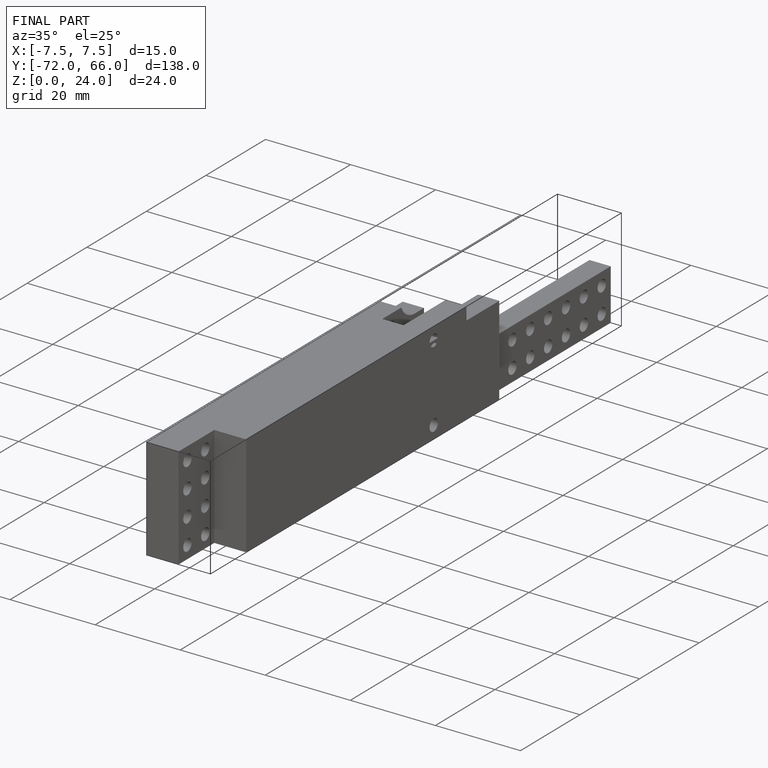
[diagram: finished part — iso view with bounding-box wireframe]
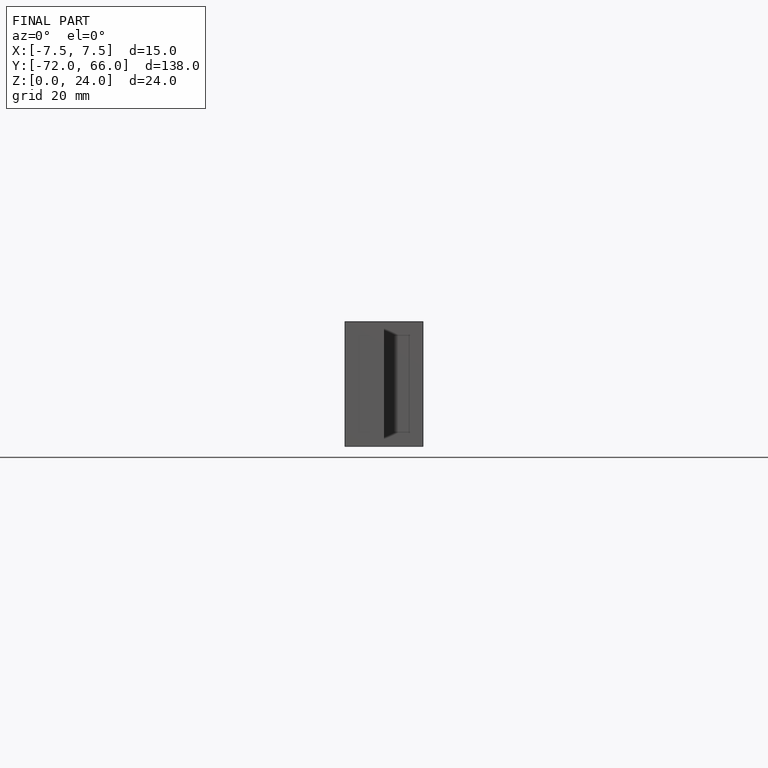
[diagram: finished part — front view with bounding-box wireframe]
